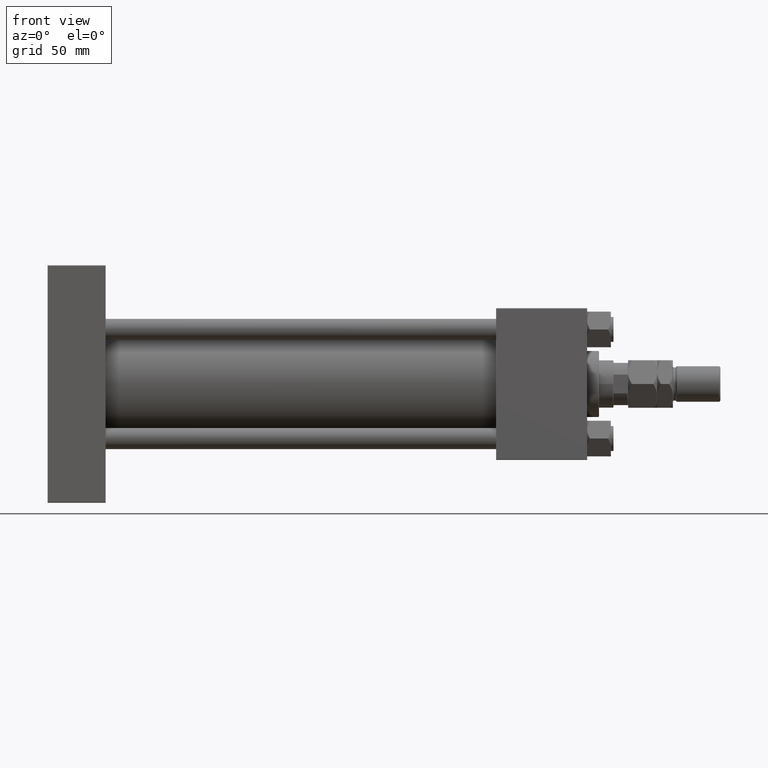
[diagram: clean part render]
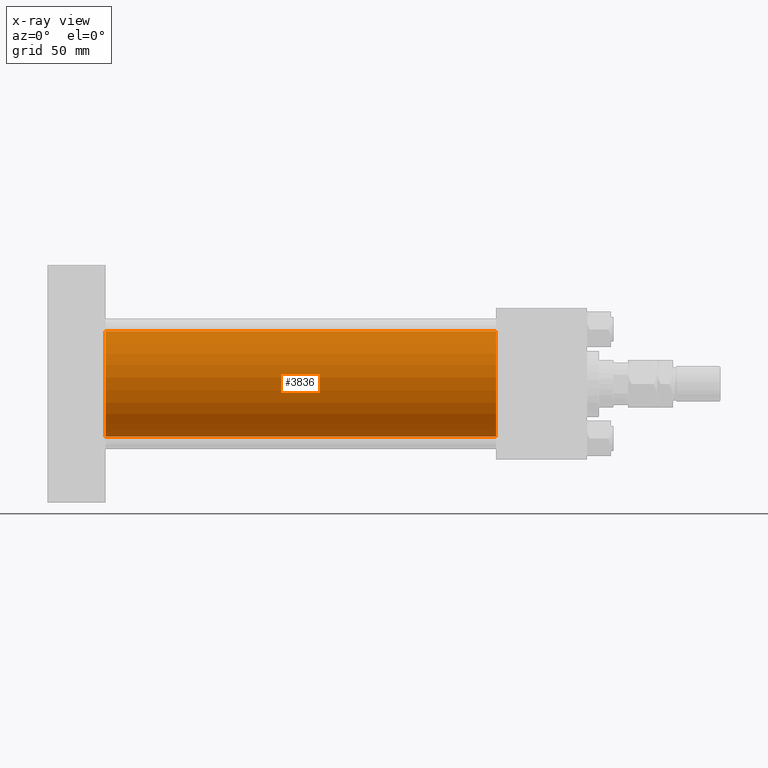
[diagram: x-ray — body ghosted, one internal face saturated and labeled with its STEP entity id]
A machine part, front view, then the same camera in x-ray: the body is ghosted and one INTERNAL B-rep face — a face not visible from any outside direction — is saturated and labeled: STEP entity #3836.
In plain terms, the highlighted cylindrical surface (partial cylindrical patch) has radius 40 mm, axis along (-1, -0, -0).
Its self-contained STEP definition (entity closure, byte-faithful):
#9 = ORIENTED_EDGE ( 'NONE', *, *, #24213, .T. ) ;
#621 = CARTESIAN_POINT ( 'NONE',  ( 339.9999999999999432, 2.296501982624201990E-15, -40.00000000000000000 ) ) ;
#1572 = DIRECTION ( 'NONE',  ( 0.000000000000000000, 0.000000000000000000, 1.000000000000000000 ) ) ;
#2108 = FACE_OUTER_BOUND ( 'NONE', #28721, .T. ) ;
#2369 = EDGE_CURVE ( 'NONE', #10909, #49686, #50991, .T. ) ;
#3638 = DIRECTION ( 'NONE',  ( -1.000000000000000000, -0.000000000000000000, -0.000000000000000000 ) ) ;
#3836 = ADVANCED_FACE ( 'NONE', ( #2108 ), #22105, .F. ) ;
#6784 = CARTESIAN_POINT ( 'NONE',  ( 339.9999999999999432, -2.602085213965210642E-15, 40.00000000000000000 ) ) ;
#9624 = ORIENTED_EDGE ( 'NONE', *, *, #40022, .F. ) ;
#10909 = VERTEX_POINT ( 'NONE', #28954 ) ;
#11383 = AXIS2_PLACEMENT_3D ( 'NONE', #51432, #22408, #39105 ) ;
#11862 = CARTESIAN_POINT ( 'NONE',  ( 339.9999999999999432, -2.602085213965210642E-15, 40.00000000000000000 ) ) ;
#14313 = AXIS2_PLACEMENT_3D ( 'NONE', #36318, #53280, #23447 ) ;
#18003 = CARTESIAN_POINT ( 'NONE',  ( 339.9999999999999432, -2.602085213965210642E-15, 0.000000000000000000 ) ) ;
#19882 = EDGE_CURVE ( 'NONE', #51290, #44573, #32122, .T. ) ;
#22105 = CYLINDRICAL_SURFACE ( 'NONE', #42594, 40.00000000000000000 ) ;
#22408 = DIRECTION ( 'NONE',  ( 1.000000000000000000, 0.000000000000000000, 0.000000000000000000 ) ) ;
#22922 = DIRECTION ( 'NONE',  ( -1.000000000000000000, -0.000000000000000000, -0.000000000000000000 ) ) ;
#23214 = ORIENTED_EDGE ( 'NONE', *, *, #19882, .F. ) ;
#23447 = DIRECTION ( 'NONE',  ( 0.000000000000000000, 0.000000000000000000, -1.000000000000000000 ) ) ;
#24213 = EDGE_CURVE ( 'NONE', #51290, #10909, #51568, .T. ) ;
#28721 = EDGE_LOOP ( 'NONE', ( #9, #36655, #9624, #23214 ) ) ;
#28954 = CARTESIAN_POINT ( 'NONE',  ( 339.9999999999999432, 2.296501982624201990E-15, -40.00000000000000000 ) ) ;
#29378 = DIRECTION ( 'NONE',  ( -1.000000000000000000, -0.000000000000000000, -0.000000000000000000 ) ) ;
#32122 = LINE ( 'NONE', #11862, #36859 ) ;
#35945 = CARTESIAN_POINT ( 'NONE',  ( 44.00000000000000000, -2.602085213965210642E-15, 40.00000000000000000 ) ) ;
#36318 = CARTESIAN_POINT ( 'NONE',  ( 44.00000000000000000, -2.602085213965210642E-15, 0.000000000000000000 ) ) ;
#36655 = ORIENTED_EDGE ( 'NONE', *, *, #2369, .T. ) ;
#36859 = VECTOR ( 'NONE', #3638, 1000.000000000000000 ) ;
#39105 = DIRECTION ( 'NONE',  ( 0.000000000000000000, 0.000000000000000000, -1.000000000000000000 ) ) ;
#40022 = EDGE_CURVE ( 'NONE', #44573, #49686, #41404, .T. ) ;
#41404 = CIRCLE ( 'NONE', #14313, 40.00000000000000000 ) ;
#42594 = AXIS2_PLACEMENT_3D ( 'NONE', #18003, #22922, #1572 ) ;
#43458 = VECTOR ( 'NONE', #29378, 1000.000000000000000 ) ;
#44573 = VERTEX_POINT ( 'NONE', #35945 ) ;
#49686 = VERTEX_POINT ( 'NONE', #50739 ) ;
#50739 = CARTESIAN_POINT ( 'NONE',  ( 44.00000000000000000, 2.296501982624201990E-15, -40.00000000000000000 ) ) ;
#50991 = LINE ( 'NONE', #621, #43458 ) ;
#51290 = VERTEX_POINT ( 'NONE', #6784 ) ;
#51432 = CARTESIAN_POINT ( 'NONE',  ( 339.9999999999999432, -2.602085213965210642E-15, 0.000000000000000000 ) ) ;
#51568 = CIRCLE ( 'NONE', #11383, 40.00000000000000000 ) ;
#53280 = DIRECTION ( 'NONE',  ( 1.000000000000000000, 0.000000000000000000, 0.000000000000000000 ) ) ;